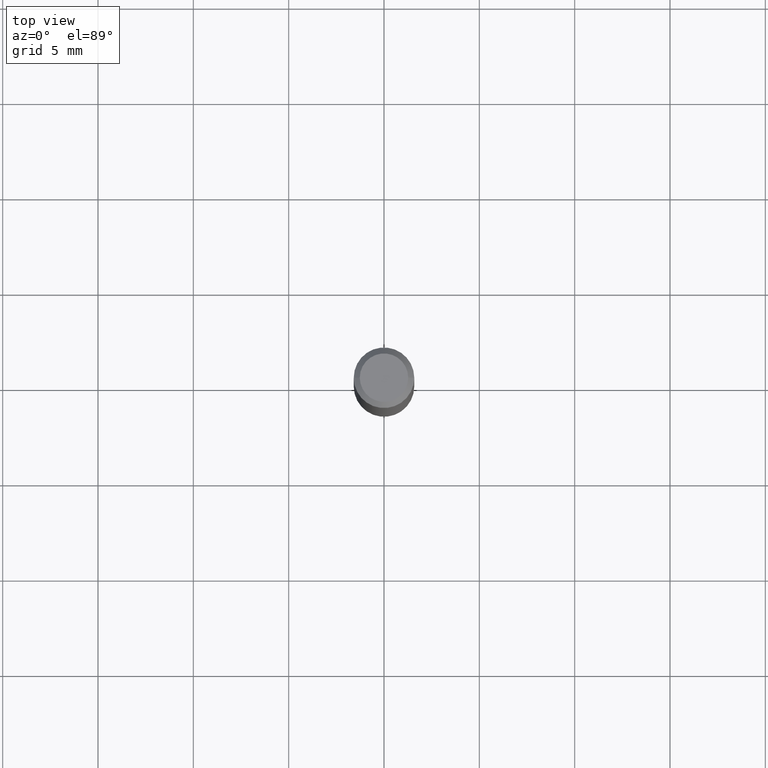
[diagram: clean part render]
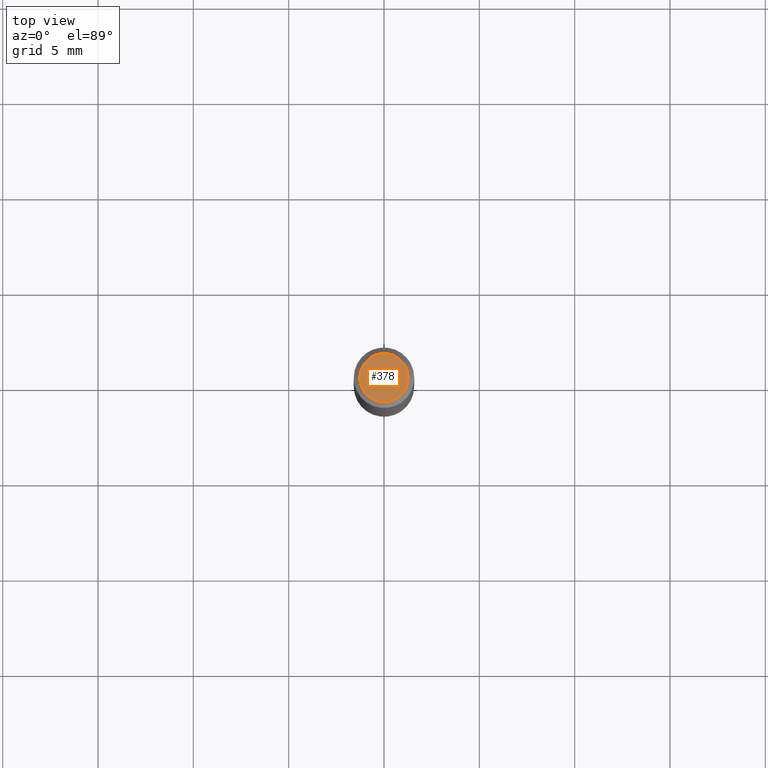
[diagram: same view with one face highlighted and labeled with its STEP entity id]
A machine part, top view. The second image highlights one B-rep face of the part: STEP entity #378.
In plain terms, the highlighted planar face has unit normal (0, -0, -1).
Its self-contained STEP definition (entity closure, byte-faithful):
#7 = DIRECTION ( 'NONE',  ( 1.000000000000000000, -6.982962677686265922E-15, 4.875957971899673662E-29 ) ) ;
#11 = VERTEX_POINT ( 'NONE', #53 ) ;
#13 = ORIENTED_EDGE ( 'NONE', *, *, #487, .T. ) ;
#21 = AXIS2_PLACEMENT_3D ( 'NONE', #203, #488, #24 ) ;
#24 = DIRECTION ( 'NONE',  ( -1.000000000000000000, 6.982962677686265922E-15, -4.876176775795935793E-29 ) ) ;
#43 = CARTESIAN_POINT ( 'NONE',  ( 3.893286209682126177E-47, -5.558580879666067980E-33, -1.592040838891559689E-18 ) ) ;
#53 = CARTESIAN_POINT ( 'NONE',  ( 0.04999999999999999584, -4.077247707424184705E-16, -1.592040838888913461E-18 ) ) ;
#60 = ORIENTED_EDGE ( 'NONE', *, *, #356, .T. ) ;
#85 = FACE_OUTER_BOUND ( 'NONE', #212, .T. ) ;
#112 = AXIS2_PLACEMENT_3D ( 'NONE', #262, #407, #162 ) ;
#121 = PLANE ( 'NONE',  #21 ) ;
#162 = DIRECTION ( 'NONE',  ( 1.000000000000000000, -6.982962677686265922E-15, 4.875957971899673662E-29 ) ) ;
#167 = CIRCLE ( 'NONE', #112, 0.04999999999999999584 ) ;
#203 = CARTESIAN_POINT ( 'NONE',  ( 1.946643104841063088E-47, -2.779290439833033990E-33, -7.960204194457798443E-19 ) ) ;
#212 = EDGE_LOOP ( 'NONE', ( #13, #60 ) ) ;
#262 = CARTESIAN_POINT ( 'NONE',  ( 3.893286209682126177E-47, -5.558580879666067980E-33, -1.592040838891559689E-18 ) ) ;
#307 = DIRECTION ( 'NONE',  ( -2.445468806185136597E-29, 3.491481338843145583E-15, 1.000000000000000000 ) ) ;
#338 = CARTESIAN_POINT ( 'NONE',  ( -0.04999999999999999584, 3.709698922520826725E-16, -1.592040838894077649E-18 ) ) ;
#356 = EDGE_CURVE ( 'NONE', #11, #358, #357, .T. ) ;
#357 = CIRCLE ( 'NONE', #428, 0.04999999999999999584 ) ;
#358 = VERTEX_POINT ( 'NONE', #338 ) ;
#378 = ADVANCED_FACE ( 'NONE', ( #85 ), #121, .F. ) ;
#407 = DIRECTION ( 'NONE',  ( -2.445468806185136597E-29, 3.491481338843145583E-15, 1.000000000000000000 ) ) ;
#428 = AXIS2_PLACEMENT_3D ( 'NONE', #43, #307, #7 ) ;
#487 = EDGE_CURVE ( 'NONE', #358, #11, #167, .T. ) ;
#488 = DIRECTION ( 'NONE',  ( 2.438088387897960049E-29, -3.491481338843145188E-15, -1.000000000000000000 ) ) ;